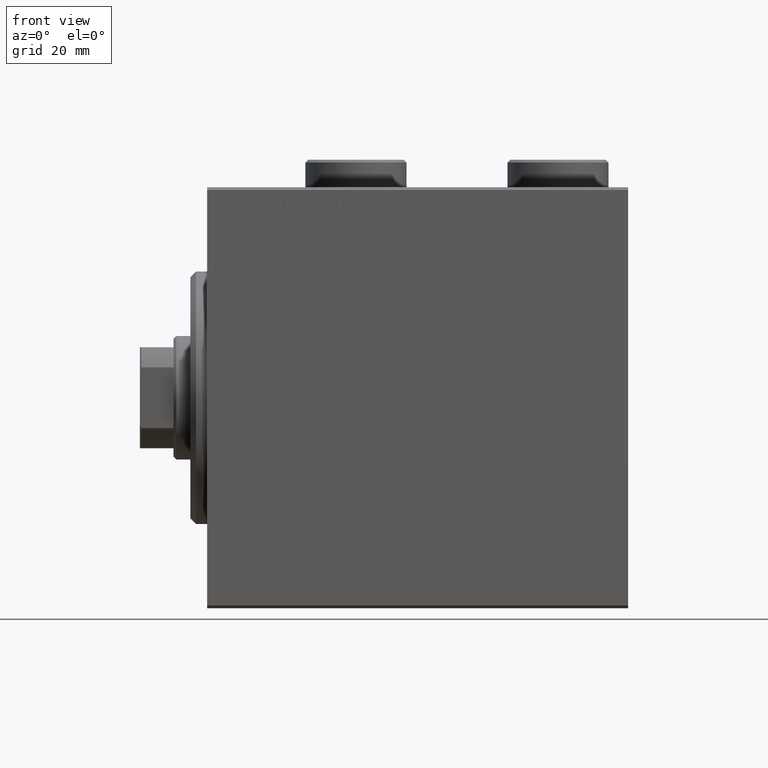
[diagram: clean part render]
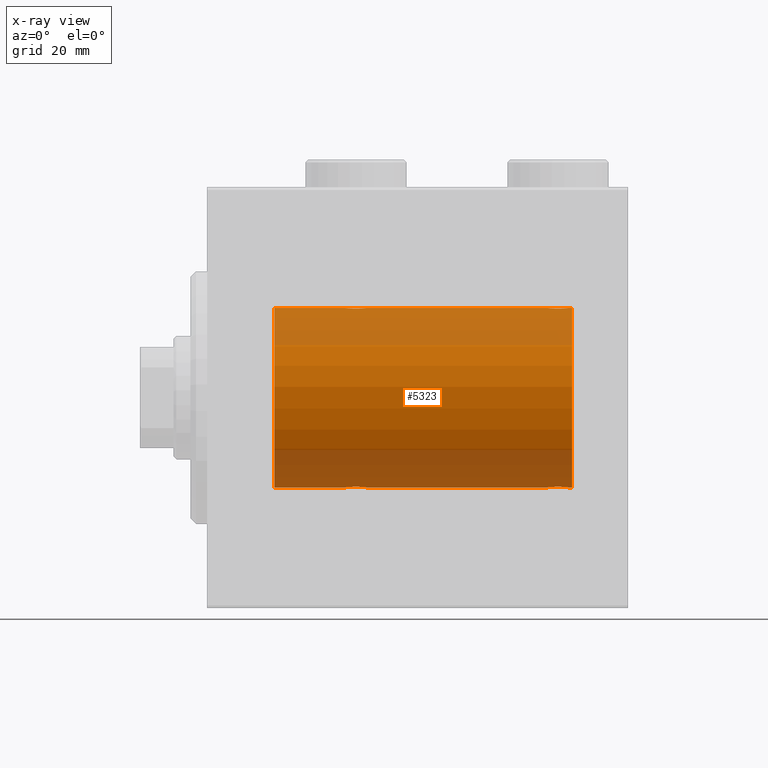
[diagram: x-ray — body ghosted, one internal face saturated and labeled with its STEP entity id]
A machine part, front view, then the same camera in x-ray: the body is ghosted and one INTERNAL B-rep face — a face not visible from any outside direction — is saturated and labeled: STEP entity #5323.
In plain terms, the highlighted cylindrical surface (partial cylindrical patch) has radius 16 mm, axis along (-1, -0, -0).
Its self-contained STEP definition (entity closure, byte-faithful):
#50 = CARTESIAN_POINT ( 'NONE',  ( 27.14636362870457731, -1.897207606501644550, -15.88720136683946826 ) ) ;
#237 = CARTESIAN_POINT ( 'NONE',  ( 27.71821872840285295, -1.591545514129674821, 15.92081325887754595 ) ) ;
#301 = DIRECTION ( 'NONE',  ( -1.000000000000000000, -0.000000000000000000, -0.000000000000000000 ) ) ;
#567 = DIRECTION ( 'NONE',  ( -1.000000000000000000, -0.000000000000000000, -0.000000000000000000 ) ) ;
#2255 = CARTESIAN_POINT ( 'NONE',  ( 64.44751141031268560, -0.5244724041436317208, -15.99321727742820620 ) ) ;
#2267 = CARTESIAN_POINT ( 'NONE',  ( 60.50000000000000711, -0.2611263091397199587, 16.00000000000000000 ) ) ;
#2482 = CARTESIAN_POINT ( 'NONE',  ( 64.50000000000000000, -0.2611263091397180713, -16.00000000000000355 ) ) ;
#2603 = B_SPLINE_CURVE_WITH_KNOTS ( 'NONE', 3,
 ( #44763, #27256, #38534, #11120, #38985, #35087, #35318, #17343, #31415, #50, #14129, #28183, #41992, #10670, #10439, #17572, #17805, #3288, #42451, #27725, #24489, #35549, #13672, #6755, #24720, #10892 ),
 .UNSPECIFIED., .F., .F.,
 ( 4, 2, 2, 2, 2, 2, 2, 2, 2, 2, 2, 2, 4 ),
 ( 0.006259031236593879007, 0.007041222816026946295, 0.007823414395460014450, 0.008214510185176547227, 0.008605605974893081739, 0.008996701764609614516, 0.009387797554326147292, 0.009778893344042681804, 0.01016998913375921632, 0.01056108492347574909, 0.01095218071319228187, 0.01173437229262534742, 0.01251656387205841471 ),
 .UNSPECIFIED. ) ;
#2706 = CARTESIAN_POINT ( 'NONE',  ( 63.50320784791315987, -1.735114343256370040, -15.90580722143557502 ) ) ;
#2716 = CARTESIAN_POINT ( 'NONE',  ( 61.61153859170720182, -1.796613193944150311, 15.89889131367403685 ) ) ;
#2998 = CARTESIAN_POINT ( 'NONE',  ( 25.27971966521589664, -1.589957129871035768, 15.92097237843274549 ) ) ;
#3234 = CARTESIAN_POINT ( 'NONE',  ( 26.36633336824380436, -1.999904855391111402, 15.87451985347842687 ) ) ;
#3288 = CARTESIAN_POINT ( 'NONE',  ( 25.61407850031505262, -1.797863738508699516, -15.89874935709250892 ) ) ;
#3326 = ORIENTED_EDGE ( 'NONE', *, *, #30837, .F. ) ;
#3343 = EDGE_CURVE ( 'NONE', #10954, #19597, #16515, .T. ) ;
#3367 = CARTESIAN_POINT ( 'NONE',  ( 65.00000000000000000, 0.000000000000000000, 0.000000000000000000 ) ) ;
#3573 = CARTESIAN_POINT ( 'NONE',  ( 65.00000000000000000, 0.000000000000000000, 16.00000000000000000 ) ) ;
#3691 = CARTESIAN_POINT ( 'NONE',  ( 27.38592149968496514, -1.797863738508701736, 15.89874935709250892 ) ) ;
#4105 = CARTESIAN_POINT ( 'NONE',  ( 28.49999999999999645, 1.959434851238818770E-15, -16.00000000000000000 ) ) ;
#4202 = ORIENTED_EDGE ( 'NONE', *, *, #17700, .T. ) ;
#4631 = DIRECTION ( 'NONE',  ( -1.000000000000000000, -0.000000000000000000, -0.000000000000000000 ) ) ;
#4669 = VERTEX_POINT ( 'NONE', #42973 ) ;
#5272 = CARTESIAN_POINT ( 'NONE',  ( 64.44674004695637848, -0.5272875822566772674, 15.99312147175147381 ) ) ;
#5323 = ADVANCED_FACE ( 'NONE', ( #28261 ), #27573, .F. ) ;
#5505 = CARTESIAN_POINT ( 'NONE',  ( 63.71821872840284584, -1.591545514129670380, 15.92081325887754950 ) ) ;
#5722 = CARTESIAN_POINT ( 'NONE',  ( 60.75183372993787145, -1.005876079953899493, 15.97016854943969832 ) ) ;
#5847 = EDGE_CURVE ( 'NONE', #8347, #36703, #26535, .T. ) ;
#5947 = CARTESIAN_POINT ( 'NONE',  ( 63.50078365753401499, -1.736521253711142521, 15.90565326803670665 ) ) ;
#5997 = VERTEX_POINT ( 'NONE', #40857 ) ;
#6334 = DIRECTION ( 'NONE',  ( -1.000000000000000000, 0.000000000000000000, 0.000000000000000000 ) ) ;
#6396 = CARTESIAN_POINT ( 'NONE',  ( 63.14636362870457020, -1.897207606501650989, -15.88720136683947182 ) ) ;
#6468 = CARTESIAN_POINT ( 'NONE',  ( 27.14376670717340545, -1.898087287925302125, 15.88709570026284545 ) ) ;
#6755 = CARTESIAN_POINT ( 'NONE',  ( 24.55325995304361086, -0.5272875822566830406, -15.99312147175148091 ) ) ;
#6831 = DIRECTION ( 'NONE',  ( -1.000000000000000000, -0.000000000000000000, -0.000000000000000000 ) ) ;
#6843 = CARTESIAN_POINT ( 'NONE',  ( 24.50000000000000000, -2.745261152005884500E-15, -16.00000000000000000 ) ) ;
#8347 = VERTEX_POINT ( 'NONE', #32623 ) ;
#9473 = EDGE_CURVE ( 'NONE', #27177, #8347, #31908, .T. ) ;
#9526 = VECTOR ( 'NONE', #567, 1000.000000000000000 ) ;
#9628 = CARTESIAN_POINT ( 'NONE',  ( 61.28178127159713284, -1.591545514129680150, -15.92081325887754417 ) ) ;
#9861 = CARTESIAN_POINT ( 'NONE',  ( 62.63366663175617788, -1.999904855391111846, -15.87451985347842331 ) ) ;
#10439 = CARTESIAN_POINT ( 'NONE',  ( 26.23917179650635845, -1.987201773464429833, -15.87613558886576115 ) ) ;
#10615 = CARTESIAN_POINT ( 'NONE',  ( 26.23629537121825095, -1.986819684797424435, 15.87618369521983475 ) ) ;
#10670 = CARTESIAN_POINT ( 'NONE',  ( 26.36919591423421494, -2.000094120337574388, -15.87449600834270669 ) ) ;
#10845 = CARTESIAN_POINT ( 'NONE',  ( 28.09763135957198799, -1.231048876942802961, 15.95364199493483781 ) ) ;
#10892 = CARTESIAN_POINT ( 'NONE',  ( 24.50000000000000000, -2.745261152005884500E-15, -16.00000000000000000 ) ) ;
#10954 = VERTEX_POINT ( 'NONE', #35702 ) ;
#11120 = CARTESIAN_POINT ( 'NONE',  ( 28.24816627006210368, -1.005876079953898605, -15.97016854943969832 ) ) ;
#11372 = VECTOR ( 'NONE', #301, 1000.000000000000000 ) ;
#12069 = B_SPLINE_CURVE_WITH_KNOTS ( 'NONE', 3,
 ( #20984, #13847, #31589, #28132, #21204, #17520, #2998, #24665, #38482, #27671, #41714, #10615, #3234, #27895, #41935, #14074, #6468, #3691, #14310, #237, #30895, #10845, #20291, #35265, #42404, #17293 ),
 .UNSPECIFIED., .F., .F.,
 ( 4, 2, 2, 2, 2, 2, 2, 2, 2, 2, 2, 2, 4 ),
 ( 0.006259031236593858190, 0.007041222816026928080, 0.007823414395459998838, 0.008214510185176533349, 0.008605605974893067861, 0.008996701764609604107, 0.009387797554326138619, 0.009778893344042673130, 0.01016998913375920938, 0.01056108492347574389, 0.01095218071319227840, 0.01173437229262534048, 0.01251656387205840430 ),
 .UNSPECIFIED. ) ;
#12290 = ORIENTED_EDGE ( 'NONE', *, *, #34884, .T. ) ;
#12867 = CARTESIAN_POINT ( 'NONE',  ( 62.76082820349364511, -1.987201773464424504, 15.87613558886576115 ) ) ;
#13081 = CARTESIAN_POINT ( 'NONE',  ( 63.72028033478409270, -1.589957129871035546, -15.92097237843274549 ) ) ;
#13310 = CARTESIAN_POINT ( 'NONE',  ( 61.85623329282659455, -1.898087287925307232, -15.88709570026284545 ) ) ;
#13547 = CARTESIAN_POINT ( 'NONE',  ( 60.90236864042802267, -1.231048876942808956, -15.95364199493483426 ) ) ;
#13672 = CARTESIAN_POINT ( 'NONE',  ( 24.75321871145306574, -1.008257970366812195, -15.97001510549667458 ) ) ;
#13847 = CARTESIAN_POINT ( 'NONE',  ( 24.50000000000000355, -0.2611263091397209579, 16.00000000000000000 ) ) ;
#14074 = CARTESIAN_POINT ( 'NONE',  ( 27.01664001081050515, -1.936513707523814354, 15.88239801746204805 ) ) ;
#14129 = CARTESIAN_POINT ( 'NONE',  ( 27.01937114547927266, -1.935780515549990088, -15.88248768234623221 ) ) ;
#14161 = VERTEX_POINT ( 'NONE', #23068 ) ;
#14310 = CARTESIAN_POINT ( 'NONE',  ( 27.50078365753405407, -1.736521253711149182, 15.90565326803671375 ) ) ;
#14644 = VECTOR ( 'NONE', #16623, 1000.000000000000000 ) ;
#14896 = EDGE_CURVE ( 'NONE', #22990, #15403, #35326, .T. ) ;
#15403 = VERTEX_POINT ( 'NONE', #4105 ) ;
#15939 = VECTOR ( 'NONE', #4631, 1000.000000000000000 ) ;
#16086 = CARTESIAN_POINT ( 'NONE',  ( 64.50000000000000000, 1.959434851248285101E-15, -16.00000000000000000 ) ) ;
#16317 = CARTESIAN_POINT ( 'NONE',  ( 61.98335998918948775, -1.936513707523816574, -15.88239801746205515 ) ) ;
#16325 = CARTESIAN_POINT ( 'NONE',  ( 60.50000000000000711, -2.739595594696790848E-23, 16.00000000000000000 ) ) ;
#16515 = B_SPLINE_CURVE_WITH_KNOTS ( 'NONE', 3,
 ( #16325, #2267, #19771, #5722, #34066, #33835, #37738, #30613, #2716, #33619, #30384, #44430, #40751, #26703, #12867, #37064, #20228, #36831, #5947, #5505, #26931, #40973, #33386, #5272, #16553, #43972 ),
 .UNSPECIFIED., .F., .F.,
 ( 4, 2, 2, 2, 2, 2, 2, 2, 2, 2, 2, 2, 4 ),
 ( 0.006259031236593833904, 0.007041222816026886447, 0.007823414395459939857, 0.008214510185176465695, 0.008605605974892991533, 0.008996701764609517371, 0.009387797554326043209, 0.009778893344042589864, 0.01016998913375913652, 0.01056108492347568317, 0.01095218071319222809, 0.01173437229262529191, 0.01251656387205835400 ),
 .UNSPECIFIED. ) ;
#16553 = CARTESIAN_POINT ( 'NONE',  ( 64.50000000000002842, -0.2645044045393374899, 16.00000000000000711 ) ) ;
#16623 = DIRECTION ( 'NONE',  ( -1.000000000000000000, -0.000000000000000000, -0.000000000000000000 ) ) ;
#16759 = CARTESIAN_POINT ( 'NONE',  ( 63.01937114547926910, -1.935780515549996306, -15.88248768234623221 ) ) ;
#17039 = ORIENTED_EDGE ( 'NONE', *, *, #19056, .T. ) ;
#17293 = CARTESIAN_POINT ( 'NONE',  ( 28.49999999999999645, -1.207828523974853969E-15, 16.00000000000000000 ) ) ;
#17343 = CARTESIAN_POINT ( 'NONE',  ( 27.50320784791318118, -1.735114343256362712, -15.90580722143558212 ) ) ;
#17520 = CARTESIAN_POINT ( 'NONE',  ( 25.17695155286792286, -1.505501573616977673, 15.92928245046054947 ) ) ;
#17572 = CARTESIAN_POINT ( 'NONE',  ( 25.98335998918948775, -1.936513707523809469, -15.88239801746204805 ) ) ;
#17700 = EDGE_CURVE ( 'NONE', #26628, #4669, #24723, .T. ) ;
#17723 = EDGE_LOOP ( 'NONE', ( #18577, #4202, #17039, #23444, #12290, #42438, #18145, #27483, #34713, #22111, #45405, #3326 ) ) ;
#17805 = CARTESIAN_POINT ( 'NONE',  ( 25.85623329282659455, -1.898087287925299016, -15.88709570026284545 ) ) ;
#17911 = EDGE_CURVE ( 'NONE', #14161, #5997, #12069, .T. ) ;
#18145 = ORIENTED_EDGE ( 'NONE', *, *, #5847, .T. ) ;
#18281 = CARTESIAN_POINT ( 'NONE',  ( 60.49999999999999289, -9.573340169032840992E-15, -16.00000000000000000 ) ) ;
#18577 = ORIENTED_EDGE ( 'NONE', *, *, #33262, .F. ) ;
#18964 = VERTEX_POINT ( 'NONE', #37137 ) ;
#19056 = EDGE_CURVE ( 'NONE', #4669, #22990, #43888, .T. ) ;
#19162 = AXIS2_PLACEMENT_3D ( 'NONE', #20151, #6334, #40443 ) ;
#19597 = VERTEX_POINT ( 'NONE', #19859 ) ;
#19771 = CARTESIAN_POINT ( 'NONE',  ( 60.55248858968734282, -0.5244724041436312767, 15.99321727742821686 ) ) ;
#19859 = CARTESIAN_POINT ( 'NONE',  ( 64.49999999999998579, 3.415560487804343463E-15, 16.00000000000000000 ) ) ;
#19991 = CARTESIAN_POINT ( 'NONE',  ( 61.61407850031504552, -1.797863738508707510, -15.89874935709250892 ) ) ;
#20151 = CARTESIAN_POINT ( 'NONE',  ( 65.00000000000000000, 0.000000000000000000, 0.000000000000000000 ) ) ;
#20228 = CARTESIAN_POINT ( 'NONE',  ( 63.14376670717340545, -1.898087287925291466, 15.88709570026284190 ) ) ;
#20291 = CARTESIAN_POINT ( 'NONE',  ( 28.24678128854693426, -1.008257970366811751, 15.97001510549667103 ) ) ;
#20646 = AXIS2_PLACEMENT_3D ( 'NONE', #28226, #38347, #42269 ) ;
#20883 = DIRECTION ( 'NONE',  ( 0.000000000000000000, 0.000000000000000000, 1.000000000000000000 ) ) ;
#20984 = CARTESIAN_POINT ( 'NONE',  ( 24.50000000000000000, -2.739635037742051899E-23, 16.00000000000000000 ) ) ;
#20996 = LINE ( 'NONE', #34134, #14644 ) ;
#21016 = LINE ( 'NONE', #42206, #15939 ) ;
#21204 = CARTESIAN_POINT ( 'NONE',  ( 24.90061418674620342, -1.228793614424124714, 15.95381972293797368 ) ) ;
#21941 = CARTESIAN_POINT ( 'NONE',  ( 65.00000000000000000, 1.959434878635765131E-15, -16.00000000000000000 ) ) ;
#22111 = ORIENTED_EDGE ( 'NONE', *, *, #28763, .F. ) ;
#22990 = VERTEX_POINT ( 'NONE', #18281 ) ;
#23068 = CARTESIAN_POINT ( 'NONE',  ( 24.50000000000000000, -2.739635037742051899E-23, 16.00000000000000000 ) ) ;
#23229 = CARTESIAN_POINT ( 'NONE',  ( 60.75321871145306574, -1.008257970366820189, -15.97001510549667813 ) ) ;
#23444 = ORIENTED_EDGE ( 'NONE', *, *, #14896, .T. ) ;
#23561 = AXIS2_PLACEMENT_3D ( 'NONE', #3367, #6831, #20883 ) ;
#23671 = CARTESIAN_POINT ( 'NONE',  ( 60.55325995304358599, -0.5272875822566914783, -15.99312147175147025 ) ) ;
#24209 = EDGE_CURVE ( 'NONE', #14161, #36703, #21016, .T. ) ;
#24489 = CARTESIAN_POINT ( 'NONE',  ( 25.17895665196595445, -1.507256214862784383, -15.92911555180481820 ) ) ;
#24665 = CARTESIAN_POINT ( 'NONE',  ( 25.49679215208682592, -1.735114343256370262, 15.90580722143557502 ) ) ;
#24720 = CARTESIAN_POINT ( 'NONE',  ( 24.50000000000001066, -0.2645044045393414867, -16.00000000000000711 ) ) ;
#24723 = LINE ( 'NONE', #41766, #39393 ) ;
#26535 = CIRCLE ( 'NONE', #20646, 16.00000000000000000 ) ;
#26628 = VERTEX_POINT ( 'NONE', #36420 ) ;
#26703 = CARTESIAN_POINT ( 'NONE',  ( 62.63080408576578151, -2.000094120337570835, 15.87449600834271024 ) ) ;
#26931 = CARTESIAN_POINT ( 'NONE',  ( 63.82104334803405266, -1.507256214862773058, 15.92911555180482175 ) ) ;
#27136 = CARTESIAN_POINT ( 'NONE',  ( 61.49921634246595659, -1.736521253711153845, -15.90565326803670665 ) ) ;
#27177 = VERTEX_POINT ( 'NONE', #6843 ) ;
#27256 = CARTESIAN_POINT ( 'NONE',  ( 28.50000000000000000, -0.2611263091397177383, -16.00000000000000000 ) ) ;
#27483 = ORIENTED_EDGE ( 'NONE', *, *, #24209, .F. ) ;
#27573 = CYLINDRICAL_SURFACE ( 'NONE', #23561, 16.00000000000000000 ) ;
#27671 = CARTESIAN_POINT ( 'NONE',  ( 25.85363637129542624, -1.897207606501653432, 15.88720136683947182 ) ) ;
#27725 = CARTESIAN_POINT ( 'NONE',  ( 25.28178127159715416, -1.591545514129671046, -15.92081325887754950 ) ) ;
#27895 = CARTESIAN_POINT ( 'NONE',  ( 26.63080408576578861, -2.000094120337581050, 15.87449600834271735 ) ) ;
#28132 = CARTESIAN_POINT ( 'NONE',  ( 24.75183372993787856, -1.005876079953904600, 15.97016854943970543 ) ) ;
#28183 = CARTESIAN_POINT ( 'NONE',  ( 26.76370462878175971, -1.986819684797417995, -15.87618369521984185 ) ) ;
#28226 = CARTESIAN_POINT ( 'NONE',  ( 11.99999999999999645, 0.000000000000000000, 0.000000000000000000 ) ) ;
#28261 = FACE_OUTER_BOUND ( 'NONE', #17723, .T. ) ;
#28417 = DIRECTION ( 'NONE',  ( -1.000000000000000000, -0.000000000000000000, -0.000000000000000000 ) ) ;
#28763 = EDGE_CURVE ( 'NONE', #10954, #5997, #20996, .T. ) ;
#28896 = DIRECTION ( 'NONE',  ( -1.000000000000000000, -0.000000000000000000, -0.000000000000000000 ) ) ;
#30375 = CARTESIAN_POINT ( 'NONE',  ( 62.23917179650635489, -1.987201773464436716, -15.87613558886576826 ) ) ;
#30384 = CARTESIAN_POINT ( 'NONE',  ( 61.98062885452072379, -1.935780515549986980, 15.88248768234623576 ) ) ;
#30602 = CARTESIAN_POINT ( 'NONE',  ( 64.09938581325380369, -1.228793614424120051, -15.95381972293796480 ) ) ;
#30613 = CARTESIAN_POINT ( 'NONE',  ( 61.49679215208682592, -1.735114343256364711, 15.90580722143557502 ) ) ;
#30824 = CARTESIAN_POINT ( 'NONE',  ( 61.17895665196596156, -1.507256214862792820, -15.92911555180481820 ) ) ;
#30837 = EDGE_CURVE ( 'NONE', #18964, #19597, #35604, .T. ) ;
#30895 = CARTESIAN_POINT ( 'NONE',  ( 27.82104334803405266, -1.507256214862787713, 15.92911555180482530 ) ) ;
#31061 = CARTESIAN_POINT ( 'NONE',  ( 60.49999999999999289, -9.573340169032840992E-15, -16.00000000000000000 ) ) ;
#31415 = CARTESIAN_POINT ( 'NONE',  ( 27.38846140829281595, -1.796613193944150755, -15.89889131367402975 ) ) ;
#31589 = CARTESIAN_POINT ( 'NONE',  ( 24.55248858968731085, -0.5244724041436337192, 15.99321727742820975 ) ) ;
#31818 = VECTOR ( 'NONE', #28896, 1000.000000000000000 ) ;
#31908 = LINE ( 'NONE', #38788, #31818 ) ;
#32623 = CARTESIAN_POINT ( 'NONE',  ( 11.99999999999999645, 1.959434878635765131E-15, -16.00000000000000000 ) ) ;
#33262 = EDGE_CURVE ( 'NONE', #26628, #18964, #37527, .T. ) ;
#33386 = CARTESIAN_POINT ( 'NONE',  ( 64.24678128854692716, -1.008257970366806422, 15.97001510549667458 ) ) ;
#33619 = CARTESIAN_POINT ( 'NONE',  ( 61.85363637129541559, -1.897207606501642774, 15.88720136683947537 ) ) ;
#33826 = CARTESIAN_POINT ( 'NONE',  ( 62.76370462878178103, -1.986819684797425767, -15.87618369521983475 ) ) ;
#33835 = CARTESIAN_POINT ( 'NONE',  ( 61.17695155286794062, -1.505501573616968791, 15.92928245046055302 ) ) ;
#34066 = CARTESIAN_POINT ( 'NONE',  ( 60.90061418674617499, -1.228793614424115166, 15.95381972293796835 ) ) ;
#34134 = CARTESIAN_POINT ( 'NONE',  ( 65.00000000000000000, 0.000000000000000000, 16.00000000000000000 ) ) ;
#34713 = ORIENTED_EDGE ( 'NONE', *, *, #17911, .T. ) ;
#34884 = EDGE_CURVE ( 'NONE', #15403, #27177, #2603, .T. ) ;
#35087 = CARTESIAN_POINT ( 'NONE',  ( 27.82304844713206293, -1.505501573616970568, -15.92928245046054769 ) ) ;
#35265 = CARTESIAN_POINT ( 'NONE',  ( 28.44674004695639624, -0.5272875822566815973, 15.99312147175146670 ) ) ;
#35318 = CARTESIAN_POINT ( 'NONE',  ( 27.72028033478411757, -1.589957129871027330, -15.92097237843274904 ) ) ;
#35326 = LINE ( 'NONE', #21941, #11372 ) ;
#35549 = CARTESIAN_POINT ( 'NONE',  ( 24.90236864042801557, -1.231048876942801407, -15.95364199493483426 ) ) ;
#35604 = LINE ( 'NONE', #3573, #9526 ) ;
#35702 = CARTESIAN_POINT ( 'NONE',  ( 60.50000000000000711, -2.739595594696790848E-23, 16.00000000000000000 ) ) ;
#36420 = CARTESIAN_POINT ( 'NONE',  ( 65.00000000000000000, 1.959434878635765131E-15, -16.00000000000000000 ) ) ;
#36703 = VERTEX_POINT ( 'NONE', #43873 ) ;
#36831 = CARTESIAN_POINT ( 'NONE',  ( 63.38592149968495448, -1.797863738508690190, 15.89874935709250181 ) ) ;
#37054 = CARTESIAN_POINT ( 'NONE',  ( 60.49999999999999289, -0.2645044045393447618, -16.00000000000000355 ) ) ;
#37064 = CARTESIAN_POINT ( 'NONE',  ( 63.01664001081051936, -1.936513707523802585, 15.88239801746204805 ) ) ;
#37137 = CARTESIAN_POINT ( 'NONE',  ( 65.00000000000000000, 0.000000000000000000, 16.00000000000000000 ) ) ;
#37527 = CIRCLE ( 'NONE', #19162, 16.00000000000000000 ) ;
#37724 = CARTESIAN_POINT ( 'NONE',  ( 63.82304844713207359, -1.505501573616973898, -15.92928245046055302 ) ) ;
#37738 = CARTESIAN_POINT ( 'NONE',  ( 61.27971966521590730, -1.589957129871031549, 15.92097237843274549 ) ) ;
#38347 = DIRECTION ( 'NONE',  ( -1.000000000000000000, 0.000000000000000000, 0.000000000000000000 ) ) ;
#38482 = CARTESIAN_POINT ( 'NONE',  ( 25.61153859170720537, -1.796613193944160969, 15.89889131367403685 ) ) ;
#38534 = CARTESIAN_POINT ( 'NONE',  ( 28.44751141031269626, -0.5244724041436300555, -15.99321727742820975 ) ) ;
#38788 = CARTESIAN_POINT ( 'NONE',  ( 65.00000000000000000, 1.959434878635765131E-15, -16.00000000000000000 ) ) ;
#38985 = CARTESIAN_POINT ( 'NONE',  ( 28.09938581325380369, -1.228793614424118497, -15.95381972293797013 ) ) ;
#39393 = VECTOR ( 'NONE', #28417, 1000.000000000000000 ) ;
#40443 = DIRECTION ( 'NONE',  ( 0.000000000000000000, 0.000000000000000000, 1.000000000000000000 ) ) ;
#40751 = CARTESIAN_POINT ( 'NONE',  ( 62.36633336824382212, -1.999904855391102743, 15.87451985347842687 ) ) ;
#40857 = CARTESIAN_POINT ( 'NONE',  ( 28.49999999999999645, -1.207828523974853969E-15, 16.00000000000000000 ) ) ;
#40973 = CARTESIAN_POINT ( 'NONE',  ( 64.09763135957199154, -1.231048876942787196, 15.95364199493483781 ) ) ;
#41187 = CARTESIAN_POINT ( 'NONE',  ( 62.36919591423421849, -2.000094120337583714, -15.87449600834270669 ) ) ;
#41714 = CARTESIAN_POINT ( 'NONE',  ( 25.98062885452072734, -1.935780515549995862, 15.88248768234623221 ) ) ;
#41766 = CARTESIAN_POINT ( 'NONE',  ( 65.00000000000000000, 1.959434878635765131E-15, -16.00000000000000000 ) ) ;
#41935 = CARTESIAN_POINT ( 'NONE',  ( 26.76082820349364866, -1.987201773464435828, 15.87613558886576470 ) ) ;
#41992 = CARTESIAN_POINT ( 'NONE',  ( 26.63366663175618854, -1.999904855391105851, -15.87451985347842687 ) ) ;
#42206 = CARTESIAN_POINT ( 'NONE',  ( 65.00000000000000000, 0.000000000000000000, 16.00000000000000000 ) ) ;
#42269 = DIRECTION ( 'NONE',  ( 0.000000000000000000, 0.000000000000000000, 1.000000000000000000 ) ) ;
#42404 = CARTESIAN_POINT ( 'NONE',  ( 28.49999999999999289, -0.2645044045393371013, 16.00000000000000000 ) ) ;
#42438 = ORIENTED_EDGE ( 'NONE', *, *, #9473, .T. ) ;
#42451 = CARTESIAN_POINT ( 'NONE',  ( 25.49921634246596369, -1.736521253711144741, -15.90565326803670665 ) ) ;
#42973 = CARTESIAN_POINT ( 'NONE',  ( 64.50000000000000000, 1.959434851248285101E-15, -16.00000000000000000 ) ) ;
#43873 = CARTESIAN_POINT ( 'NONE',  ( 11.99999999999999645, 0.000000000000000000, 16.00000000000000000 ) ) ;
#43888 = B_SPLINE_CURVE_WITH_KNOTS ( 'NONE', 3,
 ( #16086, #2482, #2255, #44642, #30602, #37724, #13081, #2706, #44868, #6396, #16759, #33826, #9861, #41187, #30375, #16317, #13310, #19991, #27136, #9628, #30824, #13547, #23229, #23671, #37054, #31061 ),
 .UNSPECIFIED., .F., .F.,
 ( 4, 2, 2, 2, 2, 2, 2, 2, 2, 2, 2, 2, 4 ),
 ( 0.006259031236593884211, 0.007041222816026949764, 0.007823414395460014450, 0.008214510185176547227, 0.008605605974893080004, 0.008996701764609611046, 0.009387797554326143823, 0.009778893344042676600, 0.01016998913375920938, 0.01056108492347574042, 0.01095218071319227146, 0.01173437229262535089, 0.01251656387205843032 ),
 .UNSPECIFIED. ) ;
#43972 = CARTESIAN_POINT ( 'NONE',  ( 64.49999999999998579, 3.415560487804343463E-15, 16.00000000000000000 ) ) ;
#44430 = CARTESIAN_POINT ( 'NONE',  ( 62.23629537121826871, -1.986819684797415331, 15.87618369521984896 ) ) ;
#44642 = CARTESIAN_POINT ( 'NONE',  ( 64.24816627006210012, -1.005876079953901048, -15.97016854943970188 ) ) ;
#44763 = CARTESIAN_POINT ( 'NONE',  ( 28.49999999999999645, 1.959434851238818770E-15, -16.00000000000000000 ) ) ;
#44868 = CARTESIAN_POINT ( 'NONE',  ( 63.38846140829282660, -1.796613193944156084, -15.89889131367402975 ) ) ;
#45405 = ORIENTED_EDGE ( 'NONE', *, *, #3343, .T. ) ;